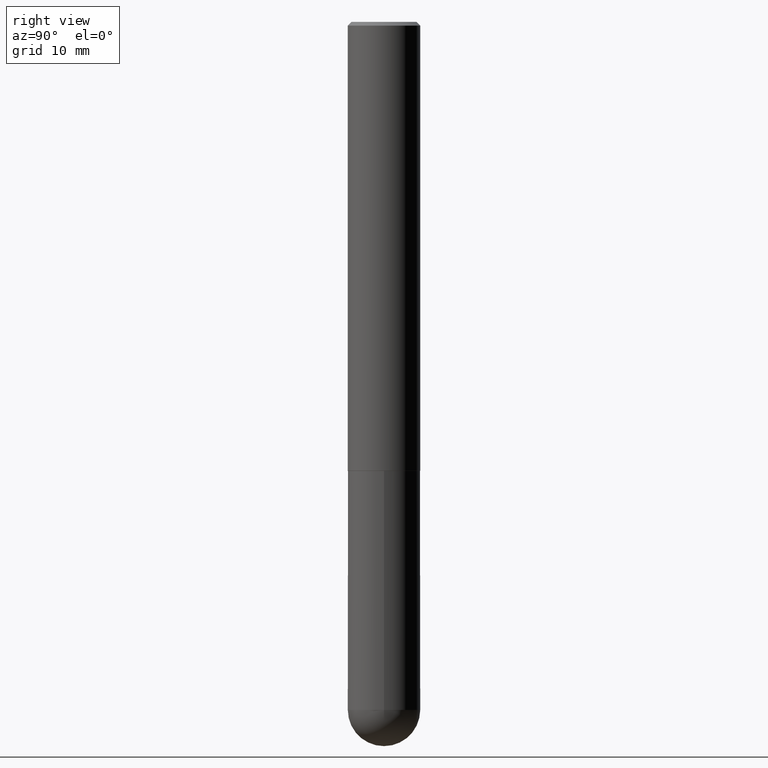
[diagram: clean part render]
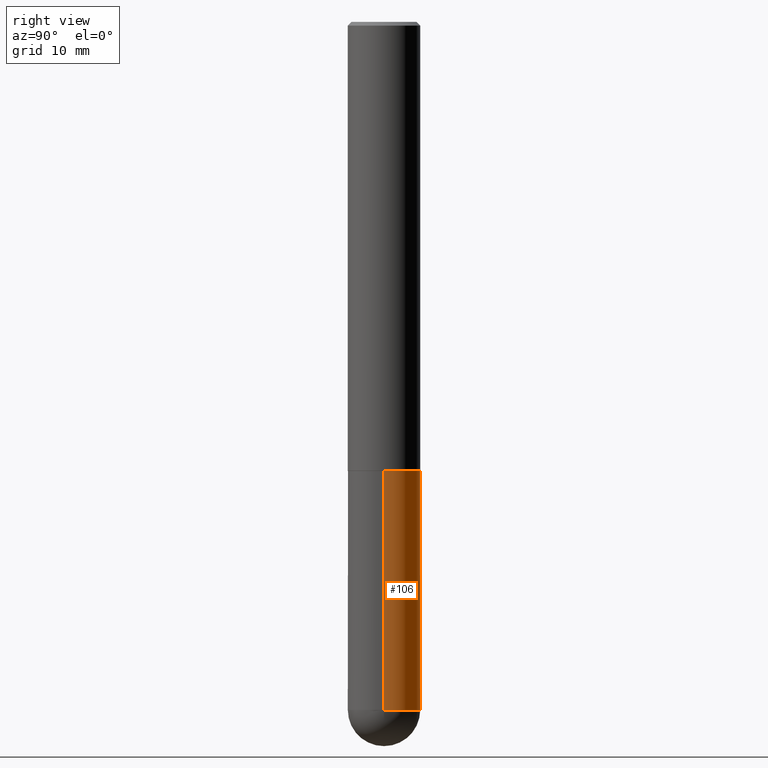
[diagram: same view with one face highlighted and labeled with its STEP entity id]
A machine part, right view. The second image highlights one B-rep face of the part: STEP entity #106.
In plain terms, the highlighted cylindrical surface (edge-blend (fillet) strip) has radius 5 mm, axis along (-0, 0, 1).
Its self-contained STEP definition (entity closure, byte-faithful):
#1 = VERTEX_POINT ( 'NONE', #268 ) ;
#5 = ORIENTED_EDGE ( 'NONE', *, *, #242, .T. ) ;
#11 = ORIENTED_EDGE ( 'NONE', *, *, #399, .T. ) ;
#18 = LINE ( 'NONE', #329, #206 ) ;
#24 = DIRECTION ( 'NONE',  ( -2.445468806185136597E-29, 3.491481338843145583E-15, 1.000000000000000000 ) ) ;
#30 = CARTESIAN_POINT ( 'NONE',  ( -0.1968499999999999694, -9.391806989384456184E-15, -3.740150000000000752 ) ) ;
#58 = DIRECTION ( 'NONE',  ( 1.000000000000000000, -6.982962677686266711E-15, 4.876176775795935793E-29 ) ) ;
#70 = CARTESIAN_POINT ( 'NONE',  ( 9.146420155453340551E-29, -1.305866392947419340E-14, -3.740150000000000752 ) ) ;
#77 = EDGE_CURVE ( 'NONE', #234, #330, #228, .T. ) ;
#79 = DIRECTION ( 'NONE',  ( 1.000000000000000000, -6.982962677686269866E-15, 0.000000000000000000 ) ) ;
#103 = CARTESIAN_POINT ( 'NONE',  ( 0.1968500000000000250, -9.896953003084774574E-15, -2.440900000000000070 ) ) ;
#106 = ADVANCED_FACE ( 'NONE', ( #196 ), #116, .T. ) ;
#116 = CYLINDRICAL_SURFACE ( 'NONE', #150, 0.1968499999999999694 ) ;
#117 = CARTESIAN_POINT ( 'NONE',  ( 0.1968499999999999694, -1.216510656783075637E-14, -3.740150000000000752 ) ) ;
#123 = EDGE_LOOP ( 'NONE', ( #363, #11, #177, #142, #5 ) ) ;
#131 = AXIS2_PLACEMENT_3D ( 'NONE', #183, #315, #310 ) ;
#142 = ORIENTED_EDGE ( 'NONE', *, *, #212, .F. ) ;
#144 = DIRECTION ( 'NONE',  ( -2.445468806185136877E-29, 3.491481338843145188E-15, 1.000000000000000000 ) ) ;
#150 = AXIS2_PLACEMENT_3D ( 'NONE', #178, #24, #58 ) ;
#155 = VERTEX_POINT ( 'NONE', #103 ) ;
#164 = DIRECTION ( 'NONE',  ( -2.445468806185136597E-29, 3.491481338843145583E-15, 1.000000000000000000 ) ) ;
#172 = CARTESIAN_POINT ( 'NONE',  ( 0.1968499999999999694, -1.374596203102541411E-15, 9.598753983154298056E-30 ) ) ;
#177 = ORIENTED_EDGE ( 'NONE', *, *, #327, .F. ) ;
#178 = CARTESIAN_POINT ( 'NONE',  ( 0.000000000000000000, 0.000000000000000000, 0.000000000000000000 ) ) ;
#183 = CARTESIAN_POINT ( 'NONE',  ( 5.969144809017299038E-29, -8.522356799982232966E-15, -2.440900000000000070 ) ) ;
#191 = LINE ( 'NONE', #172, #359 ) ;
#196 = FACE_OUTER_BOUND ( 'NONE', #123, .T. ) ;
#205 = VERTEX_POINT ( 'NONE', #117 ) ;
#206 = VECTOR ( 'NONE', #372, 39.37007874015748143 ) ;
#212 = EDGE_CURVE ( 'NONE', #205, #155, #191, .T. ) ;
#228 = CIRCLE ( 'NONE', #291, 0.1968499999999999694 ) ;
#232 = DIRECTION ( 'NONE',  ( -2.445468806185136597E-29, 3.491481338843145583E-15, 1.000000000000000000 ) ) ;
#234 = VERTEX_POINT ( 'NONE', #371 ) ;
#242 = EDGE_CURVE ( 'NONE', #205, #234, #269, .T. ) ;
#268 = CARTESIAN_POINT ( 'NONE',  ( -0.1968500000000000250, -9.391806989384456184E-15, -2.440900000000000070 ) ) ;
#269 = CIRCLE ( 'NONE', #314, 0.1968499999999999694 ) ;
#291 = AXIS2_PLACEMENT_3D ( 'NONE', #339, #164, #373 ) ;
#308 = CIRCLE ( 'NONE', #131, 0.1968500000000000250 ) ;
#310 = DIRECTION ( 'NONE',  ( 1.000000000000000000, -6.982962677686262766E-15, 0.000000000000000000 ) ) ;
#314 = AXIS2_PLACEMENT_3D ( 'NONE', #70, #232, #79 ) ;
#315 = DIRECTION ( 'NONE',  ( -2.445468806185136597E-29, 3.491481338843145583E-15, 1.000000000000000000 ) ) ;
#327 = EDGE_CURVE ( 'NONE', #155, #1, #308, .T. ) ;
#329 = CARTESIAN_POINT ( 'NONE',  ( -0.1968499999999999694, 1.398703375343756999E-15, -9.682923725166782276E-30 ) ) ;
#330 = VERTEX_POINT ( 'NONE', #30 ) ;
#339 = CARTESIAN_POINT ( 'NONE',  ( 9.146420155453340551E-29, -1.305866392947419340E-14, -3.740150000000000752 ) ) ;
#359 = VECTOR ( 'NONE', #144, 39.37007874015748143 ) ;
#363 = ORIENTED_EDGE ( 'NONE', *, *, #77, .T. ) ;
#371 = CARTESIAN_POINT ( 'NONE',  ( 1.374596203102631736E-15, 0.1968499999999867855, -3.740150000000001196 ) ) ;
#372 = DIRECTION ( 'NONE',  ( -2.445468806185136877E-29, 3.491481338843145188E-15, 1.000000000000000000 ) ) ;
#373 = DIRECTION ( 'NONE',  ( 1.000000000000000000, -6.982962677686269866E-15, 0.000000000000000000 ) ) ;
#399 = EDGE_CURVE ( 'NONE', #330, #1, #18, .T. ) ;